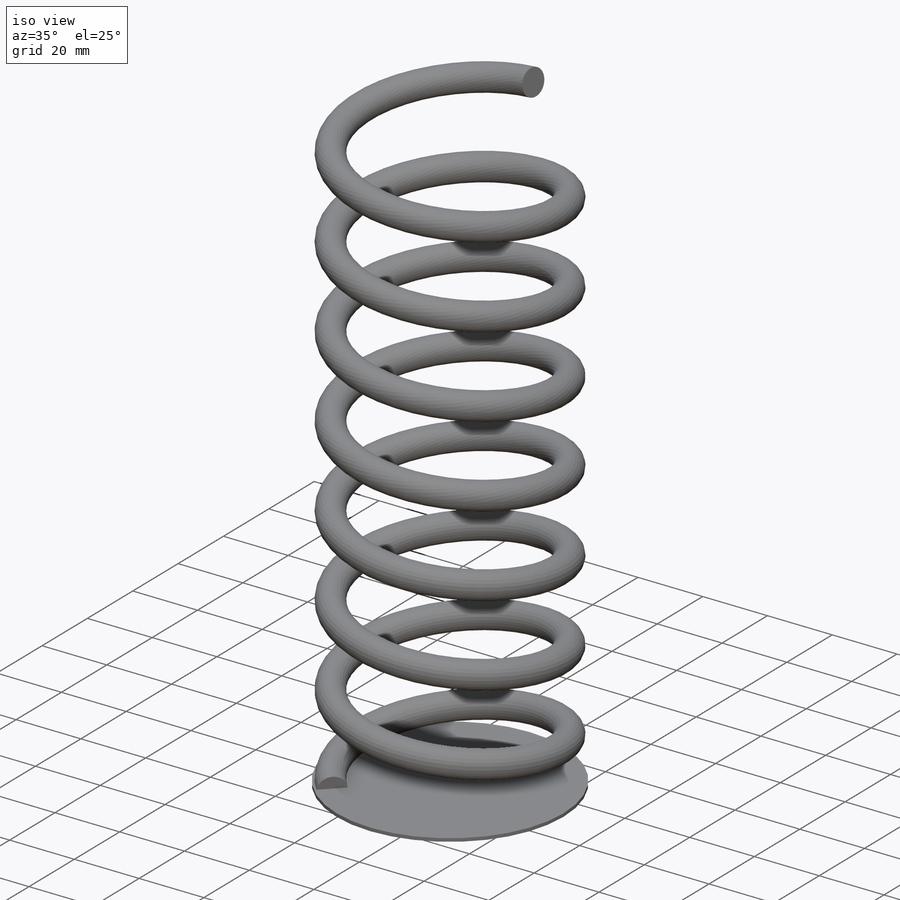
[diagram: iso view]
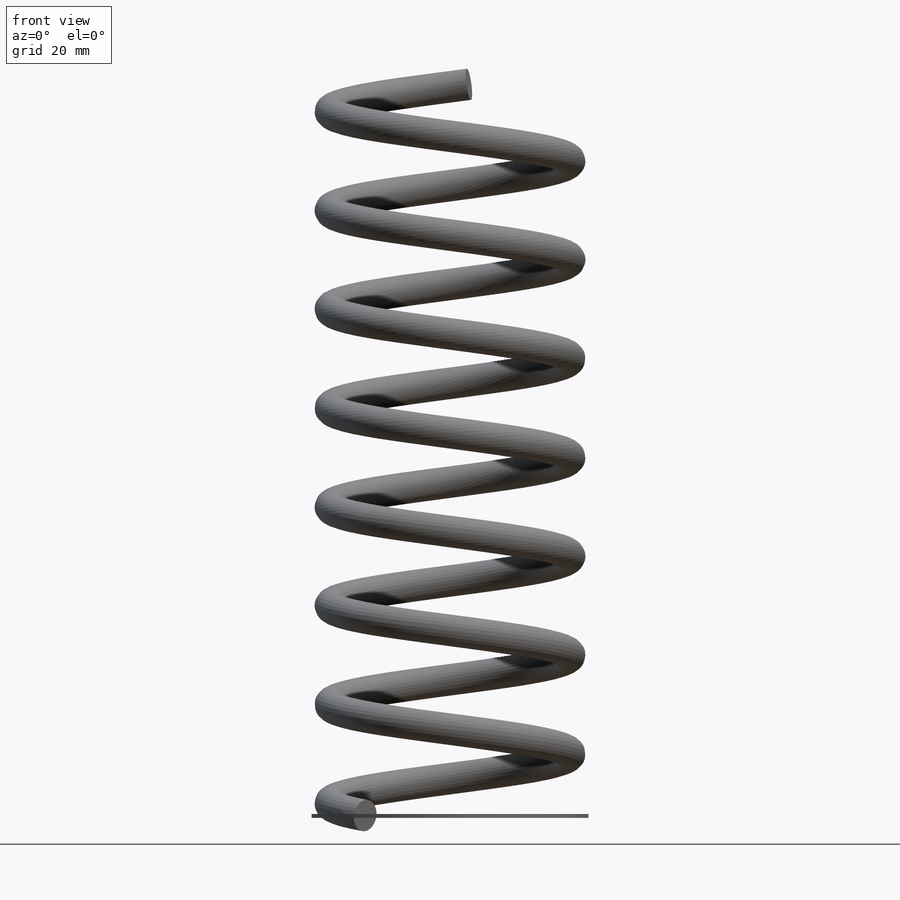
[diagram: front view]
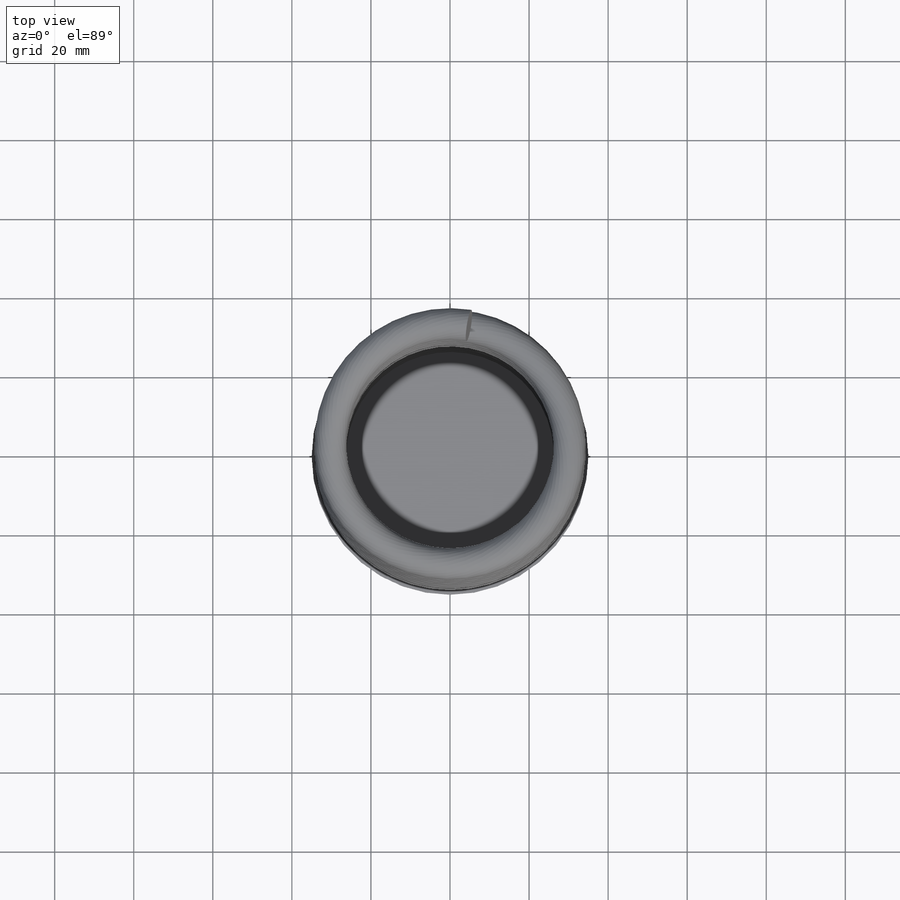
[diagram: top view]
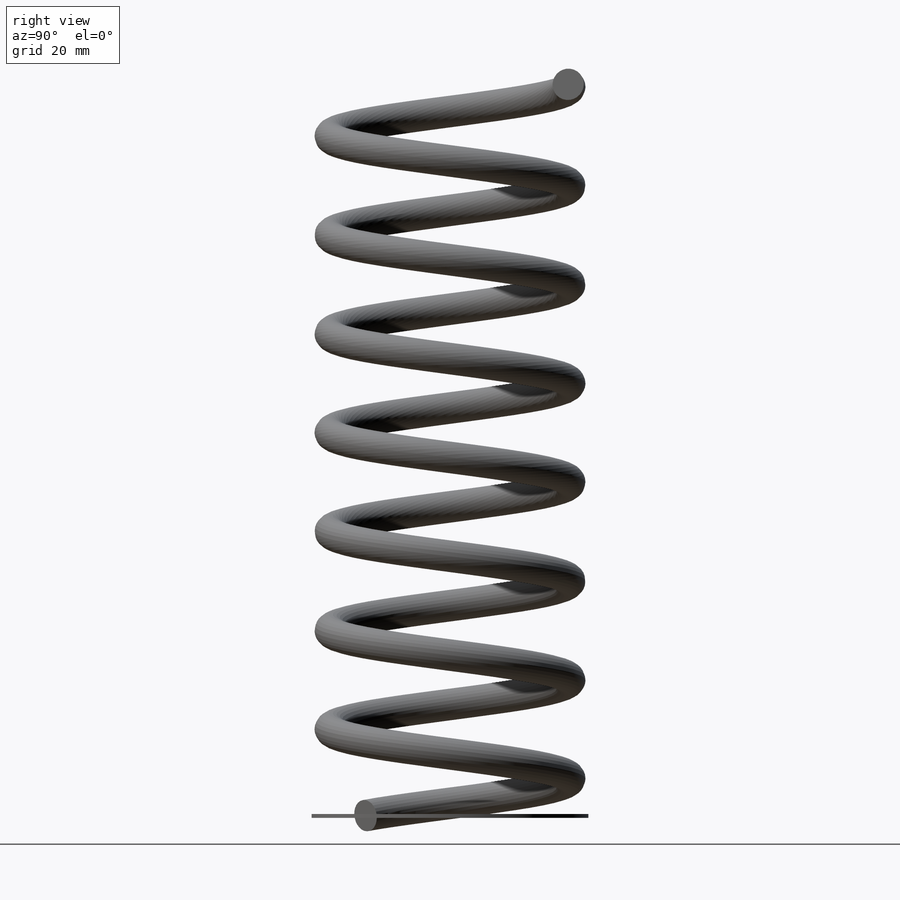
[diagram: right view]
SOLIDWORKS PART (.sldprt)
format: sldprt  version: not decoded by parser v0  size: 455,680 bytes
history: native  units: mm
features: sketch x3, material x1, helix x1, plane x1, sweep x1, extrude x1 (+13 scaffold rows collapsed)
feature tree (21):
  scaffold x13  (default folders/planes/origin — collapsed)
  material  "Material <sin especificar>"
  sketch  "Sketch1"  dims[D1=~22.797612mm]
  helix  "Helix/Spiral1"  Pitch=185mm
  plane  "Plane1"
  sketch  "Sketch2"  dims[D1=~6.505454mm]
  sweep  "Sweep1"
  sketch  "Sketch3"  dims[D1=36.0mm]
  extrude  "Boss-Extrude1"  Depth=1mm
decode coverage: 5 of 6 modeling features carry decoded parameters
note: ~ marks probable driven/reference dimensions
note: suppression state not decoded; provenance and decode notes live in map.json
